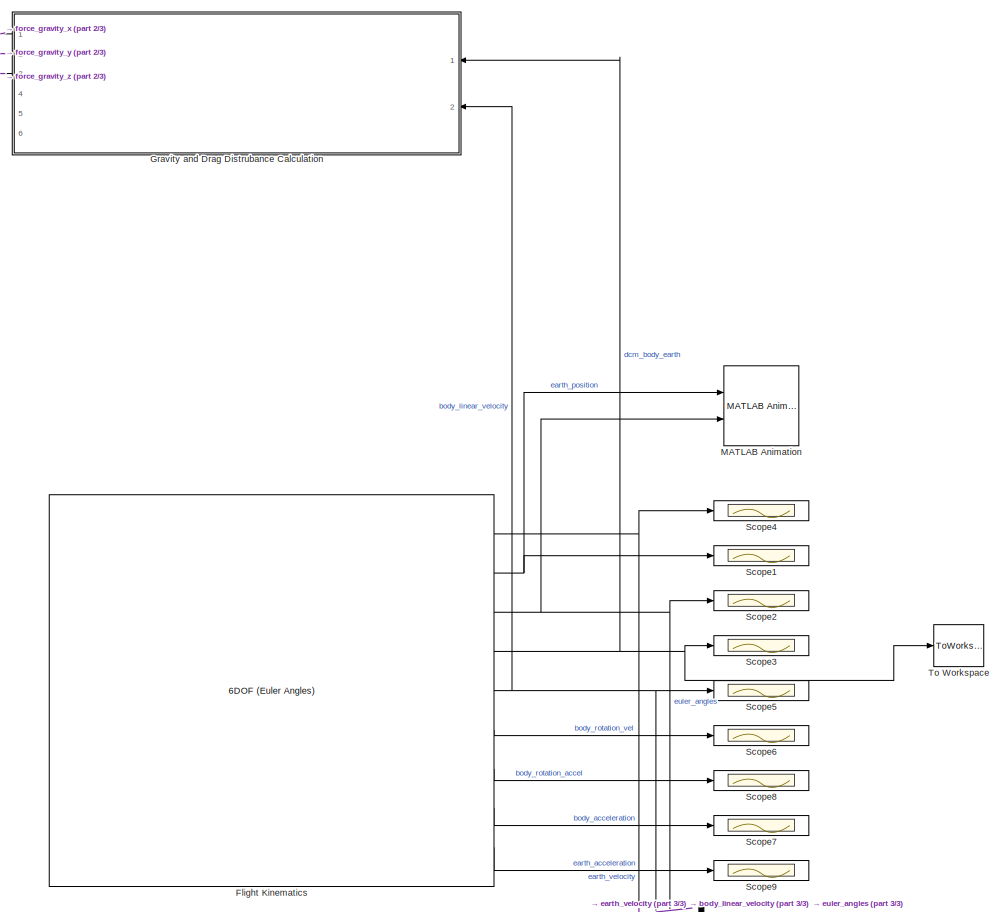
[diagram: root canvas - part 1/3, central region]
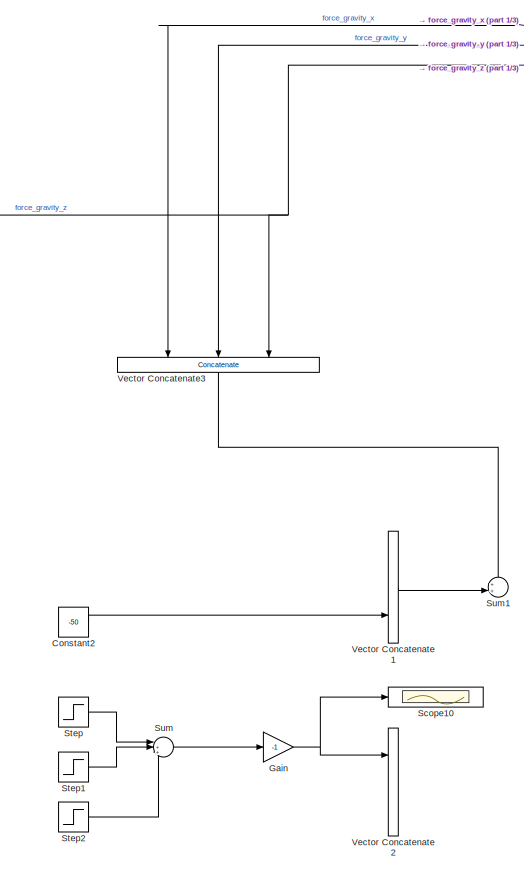
[diagram: root canvas - part 2/3, middle left region]
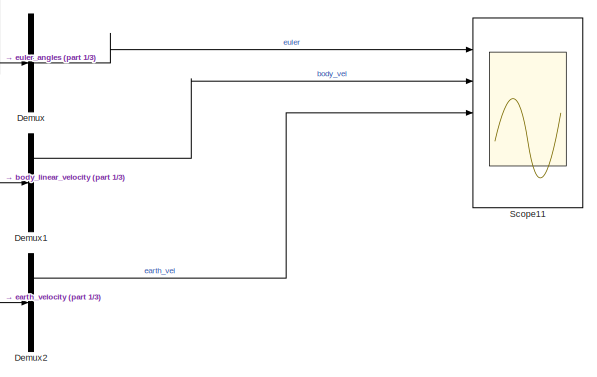
[diagram: root canvas - part 3/3, bottom right region]
MODEL slx_10680c32d11c
KIND model
CONFIG AbsTol = auto
CONFIG EnableMultiTasking = off
CONFIG FixedStep = auto
CONFIG MaxStep = auto
CONFIG MinStep = auto
CONFIG RelTol = 1e-3
CONFIG SampleTimeConstraint = Unconstrained
CONFIG Solver = VariableStepAuto
CONFIG SolverName = VariableStepAuto
CONFIG StartTime = 0.0
CONFIG StopTime = 30
BLOCK [Constant] Constant2
  Value = -50
BLOCK [Demux] Demux
  DisplayOption = bar
  Outputs = 3
  Ports = [1, 3]
BLOCK [Demux] Demux1
  DisplayOption = bar
  Outputs = 3
  Ports = [1, 3]
BLOCK [Demux] Demux2
  DisplayOption = bar
  Outputs = 3
  Ports = [1, 3]
BLOCK [Reference] Flight Kinematics  REF=shared6dof/6DOF (Euler Angles)
  Ports = [2, 9]
  SourceBlock = shared6dof/6DOF (Euler Angles)
  SourceType = 6DOF EoM (Body Axis)
BLOCK [Gain] Gain
  Gain = -1
  OutDataTypeStr = Inherit: Inherit via internal rule
  ParamDataTypeStr = Inherit: Inherit via internal rule
  SaturateOnIntegerOverflow = off
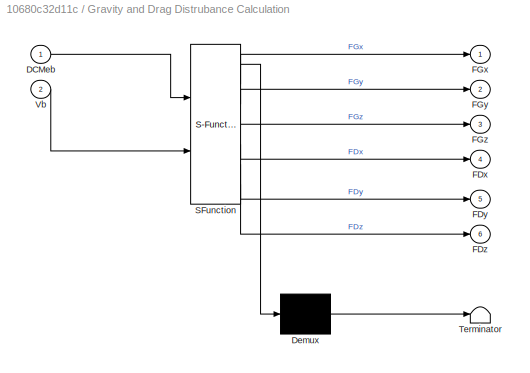
BLOCK [SubSystem] Gravity and Drag Distrubance Calculation
  ErrorFcn = Stateflow.Translate.translate
  PermitHierarchicalResolution = ExplicitOnly
  Ports = [2, 6]
  RequestExecContextInheritance = off
  SFBlockType = MATLAB Function
  TreatAsAtomicUnit = on
  Variant = off
BLOCK [Demux] Gravity and Drag Distrubance Calculation/ Demux 
  Outputs = 1
  Ports = [1, 1]
BLOCK [S-Function] Gravity and Drag Distrubance Calculation/ SFunction 
  EnableBusSupport = on
  FunctionName = sf_sfun
  PortCounts = [2 7]
  Ports = [2, 7]
  SFcnIsStateOwnerBlock = off
  SFunctionDeploymentMode = off
  Tag = Stateflow S-Function Test 3
BLOCK [Terminator] Gravity and Drag Distrubance Calculation/ Terminator 
BLOCK [Inport] Gravity and Drag Distrubance Calculation/DCMeb
  IconDisplay = Port number
BLOCK [Outport] Gravity and Drag Distrubance Calculation/FDx
  IconDisplay = Port number
  Port = 4
BLOCK [Outport] Gravity and Drag Distrubance Calculation/FDy
  IconDisplay = Port number
  Port = 5
BLOCK [Outport] Gravity and Drag Distrubance Calculation/FDz
  IconDisplay = Port number
  Port = 6
BLOCK [Outport] Gravity and Drag Distrubance Calculation/FGx
  IconDisplay = Port number
BLOCK [Outport] Gravity and Drag Distrubance Calculation/FGy
  IconDisplay = Port number
  Port = 2
BLOCK [Outport] Gravity and Drag Distrubance Calculation/FGz
  IconDisplay = Port number
  Port = 3
BLOCK [Inport] Gravity and Drag Distrubance Calculation/Vb
  IconDisplay = Port number
  Port = 2
BLOCK [Reference] MATLAB Animation  REF=aerolibanim/MATLAB
Animation
  Ports = [2]
  SourceBlock = aerolibanim/MATLAB\nAnimation
  SourceProductBaseCode = AE
  SourceProductName = Aerospace Blockset
  SourceType = AeroMATLABAnimation
  Tag = Matlab Animation 6 DOF
BLOCK [Scope] Scope1
  NumInputPorts = 1
  Ports = [1]
  ScopeSpecificationString = Simulink.scopes.TimeScopeBlockCfg('CurrentConfiguration', extmgr.ConfigurationSet(extmgr.Configuration('Core','General UI',true),extmgr.Configuration('Core','Source UI',true),extmgr.Configuration('Sources','WiredSimulink',true,'DataLoggingVariableName','ScopeData1'),extmgr.Configuration('Visuals','Time Domain',true,'SerializedDisplays',{struct('MinYLimReal','-840.32332','MaxYLimReal','105.93452','...<+1787ch>
BLOCK [Scope] Scope10
  NumInputPorts = 1
  Ports = [1]
  ScopeSpecificationString = Simulink.scopes.TimeScopeBlockCfg('CurrentConfiguration', extmgr.ConfigurationSet(extmgr.Configuration('Core','General UI',true),extmgr.Configuration('Core','Source UI',true),extmgr.Configuration('Sources','WiredSimulink',true,'DataLoggingVariableName','ScopeData9'),extmgr.Configuration('Visuals','Time Domain',true,'SerializedDisplays',{struct('MinYLimReal','-0.005','MaxYLimReal','0.005','YLabelRe...<+1677ch>
BLOCK [Scope] Scope11
  NumInputPorts = 5
  Ports = [5]
  ScopeSpecificationString = Simulink.scopes.TimeScopeBlockCfg('CurrentConfiguration', extmgr.ConfigurationSet(extmgr.Configuration('Core','General UI',true),extmgr.Configuration('Core','Source UI',true),extmgr.Configuration('Sources','WiredSimulink',true,'DataLoggingVariableName','ScopeData10'),extmgr.Configuration('Visuals','Time Domain',true,'SerializedDisplays',{struct('MinYLimReal','-1.00000','MaxYLimReal','1.00000','YLa...<+1772ch>
BLOCK [Scope] Scope2
  NumInputPorts = 1
  Ports = [1]
  ScopeSpecificationString = Simulink.scopes.TimeScopeBlockCfg('CurrentConfiguration', extmgr.ConfigurationSet(extmgr.Configuration('Core','General UI',true),extmgr.Configuration('Core','Source UI',true),extmgr.Configuration('Sources','WiredSimulink',true,'DataLoggingVariableName','ScopeData2'),extmgr.Configuration('Visuals','Time Domain',true,'SerializedDisplays',{struct('MinYLimReal','-0.02659','MaxYLimReal','0.00295','YLab...<+1767ch>
BLOCK [Scope] Scope3
  NumInputPorts = 1
  Ports = [1]
  ScopeSpecificationString = Simulink.scopes.TimeScopeBlockCfg('CurrentConfiguration', extmgr.ConfigurationSet(extmgr.Configuration('Core','General UI',true),extmgr.Configuration('Core','Source UI',true),extmgr.Configuration('Sources','WiredSimulink',true,'DataLoggingVariableName','ScopeData3'),extmgr.Configuration('Visuals','Time Domain',true,'SerializedDisplays',{struct('MinYLimReal','-0.15158','MaxYLimReal','1.12795','YLab...<+1815ch>
BLOCK [Scope] Scope4
  NumInputPorts = 1
  Ports = [1]
  ScopeSpecificationString = Simulink.scopes.TimeScopeBlockCfg('CurrentConfiguration', extmgr.ConfigurationSet(extmgr.Configuration('Core','General UI',true),extmgr.Configuration('Core','Source UI',true),extmgr.Configuration('Sources','WiredSimulink',true),extmgr.Configuration('Visuals','Time Domain',true,'SerializedDisplays',{struct('MinYLimReal','-168.12635','MaxYLimReal','21.81385','YLabelReal','','MinYLimMag',' 0.00000','...<+1746ch>
BLOCK [Scope] Scope5
  NumInputPorts = 1
  Ports = [1]
  ScopeSpecificationString = Simulink.scopes.TimeScopeBlockCfg('CurrentConfiguration', extmgr.ConfigurationSet(extmgr.Configuration('Core','General UI',true),extmgr.Configuration('Core','Source UI',true),extmgr.Configuration('Sources','WiredSimulink',true,'DataLoggingVariableName','ScopeData4'),extmgr.Configuration('Visuals','Time Domain',true,'SerializedDisplays',{struct('MinYLimReal','-167.80198','MaxYLimReal','18.64466','Y...<+1782ch>
BLOCK [Scope] Scope6
  NumInputPorts = 1
  Ports = [1]
  ScopeSpecificationString = Simulink.scopes.TimeScopeBlockCfg('CurrentConfiguration', extmgr.ConfigurationSet(extmgr.Configuration('Core','General UI',true),extmgr.Configuration('Core','Source UI',true),extmgr.Configuration('Sources','WiredSimulink',true,'DataLoggingVariableName','ScopeData5'),extmgr.Configuration('Visuals','Time Domain',true,'SerializedDisplays',{struct('MinYLimReal','-0.02659','MaxYLimReal','0.00295','YLab...<+1782ch>
BLOCK [Scope] Scope7
  NumInputPorts = 1
  Ports = [1]
  ScopeSpecificationString = Simulink.scopes.TimeScopeBlockCfg('CurrentConfiguration', extmgr.ConfigurationSet(extmgr.Configuration('Core','General UI',true),extmgr.Configuration('Core','Source UI',true),extmgr.Configuration('Sources','WiredSimulink',true,'DataLoggingVariableName','ScopeData6'),extmgr.Configuration('Visuals','Time Domain',true,'SerializedDisplays',{struct('MinYLimReal','-16.78103','MaxYLimReal','1.86456','YLa...<+1816ch>
BLOCK [Scope] Scope8
  NumInputPorts = 1
  Ports = [1]
  ScopeSpecificationString = Simulink.scopes.TimeScopeBlockCfg('CurrentConfiguration', extmgr.ConfigurationSet(extmgr.Configuration('Core','General UI',true),extmgr.Configuration('Core','Source UI',true),extmgr.Configuration('Sources','WiredSimulink',true,'DataLoggingVariableName','ScopeData7'),extmgr.Configuration('Visuals','Time Domain',true,'SerializedDisplays',{struct('MinYLimReal','-0.02954','MaxYLimReal','0.02954','YLab...<+1788ch>
BLOCK [Scope] Scope9
  NumInputPorts = 1
  Ports = [1]
  ScopeSpecificationString = Simulink.scopes.TimeScopeBlockCfg('CurrentConfiguration', extmgr.ConfigurationSet(extmgr.Configuration('Core','General UI',true),extmgr.Configuration('Core','Source UI',true),extmgr.Configuration('Sources','WiredSimulink',true,'DataLoggingVariableName','ScopeData8'),extmgr.Configuration('Visuals','Time Domain',true,'SerializedDisplays',{struct('MinYLimReal','-16.78103','MaxYLimReal','1.86456','YLa...<+1789ch>
BLOCK [Step] Step
  After = -0.008
  SampleTime = 0
BLOCK [Step] Step1
  After = 0.016
  SampleTime = 0
  Time = 2
BLOCK [Step] Step2
  After = -0.008
  SampleTime = 0
  Time = 3
BLOCK [Sum] Sum
  IconShape = round
  InputSameDT = off
  Inputs = |+++
  OutDataTypeStr = Inherit: Inherit via internal rule
  Ports = [3, 1]
  SaturateOnIntegerOverflow = off
BLOCK [Sum] Sum1
  IconShape = round
  InputSameDT = off
  Inputs = ++|
  OutDataTypeStr = Inherit: Inherit via internal rule
  Ports = [2, 1]
  SaturateOnIntegerOverflow = off
BLOCK [ToWorkspace] To Workspace
  MaxDataPoints = inf
  Ports = [1]
  SampleTime = -1
  Save2DSignal = 2-D array (concatenate along first dimension)
  VariableName = dcm
BLOCK [Concatenate] Vector Concatenate1
  NumInputs = 3
  Ports = [3, 1]
BLOCK [Concatenate] Vector Concatenate2
  NumInputs = 3
  Ports = [3, 1]
BLOCK [Concatenate] Vector Concatenate3
  NumInputs = 3
  Ports = [3, 1]
LINE Constant2:1 -> Vector Concatenate1:3
LINE Demux1:1 -> Scope11:2
LINE Demux2:1 -> Scope11:3
LINE Demux:2 -> Scope11:1
NET Flight Kinematics:1 -> Demux2:1, Scope4:1
NET Flight Kinematics:2 -> MATLAB Animation:1, Scope1:1
NET Flight Kinematics:3 -> Demux:1, MATLAB Animation:2, Scope2:1
NET Flight Kinematics:4 -> Gravity and Drag Distrubance Calculation:1, Scope3:1, To Workspace:1
NET Flight Kinematics:5 -> Demux1:1, Gravity and Drag Distrubance Calculation:2, Scope5:1
LINE Flight Kinematics:6 -> Scope6:1
LINE Flight Kinematics:7 -> Scope8:1
LINE Flight Kinematics:8 -> Scope7:1
LINE Flight Kinematics:9 -> Scope9:1
NET Gain:1 -> Scope10:1, Vector Concatenate2:1
LINE Gravity and Drag Distrubance Calculation:1 -> Vector Concatenate3:1
LINE Gravity and Drag Distrubance Calculation:2 -> Vector Concatenate3:2
LINE Gravity and Drag Distrubance Calculation:3 -> Vector Concatenate3:3
LINE Step1:1 -> Sum:2
LINE Step2:1 -> Sum:3
LINE Step:1 -> Sum:1
LINE Sum:1 -> Gain:1
LINE Vector Concatenate1:1 -> Sum1:2
LINE Vector Concatenate3:1 -> Sum1:1
note: NET lines group one-source signal fan-out (src -> all destinations, sorted); 1:1 wires keep LINE
CHART Gravity and Drag Distrubance Calculation states=1 transitions=1
  STATE_LABEL 'eML_blk_kernel()'
  STATE_LABEL "SCRIPT:\nfunction [FGx, FGy, FGz, FDx, FDy, FDz] = gravityDragCalculation(DCMeb, Vb)\n%   Gravity and Drag Calculations\n%   Inputs\n%   DCMbe = Direct Cosine Matrix, from earth to body\n%   Vb = Linear Velocity, body frame\n%   Outputs\n%   FGa = Force of gravity in the 'a' axis, body frame\n%   FDa = Force of drag in the 'a' axis, body frame\n\n%Gravity Constants\nmass = 3.352;\ngravityForce_earth = [0, 0, ...<+938ch>"
